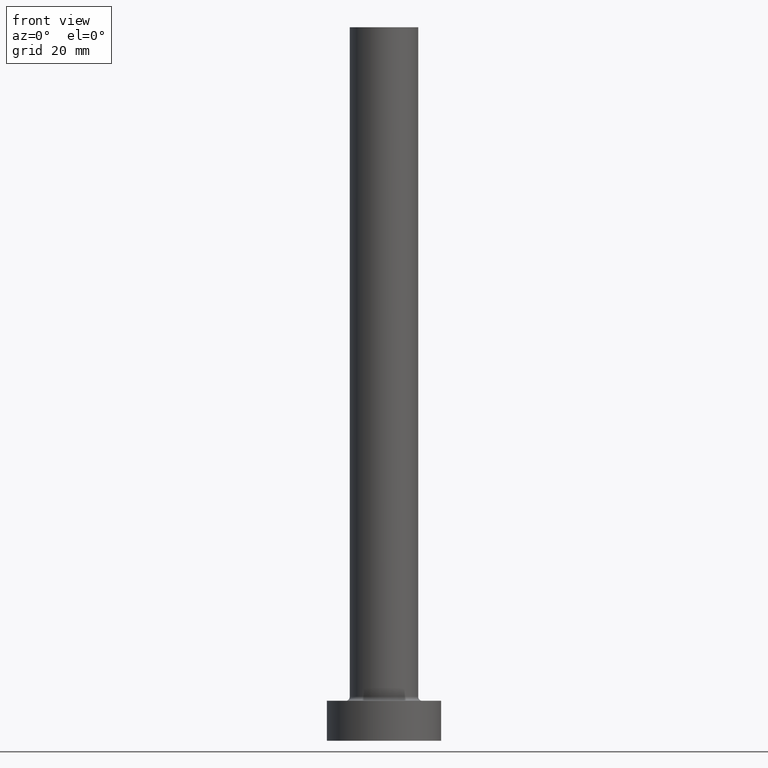
[diagram: clean part render]
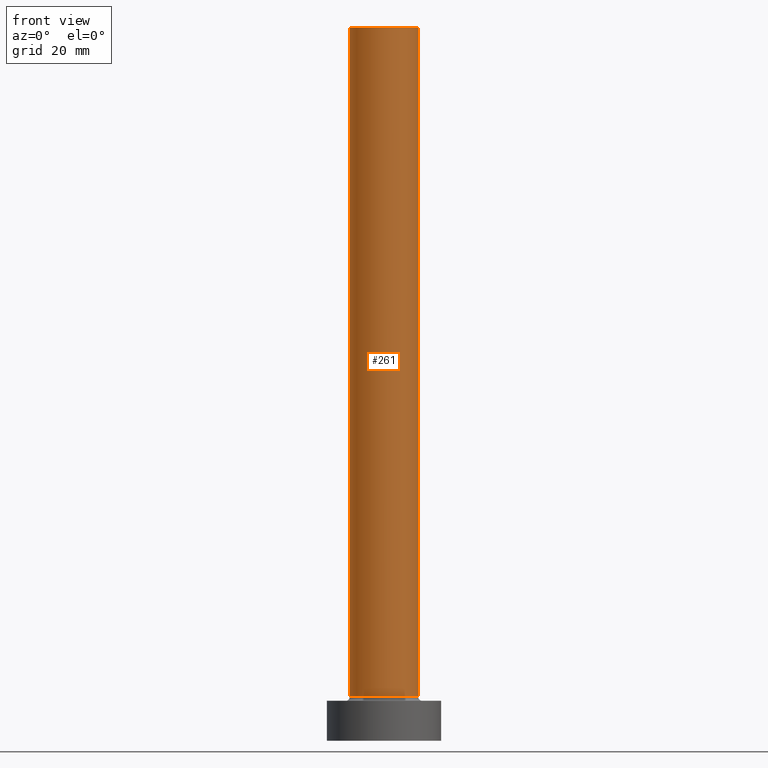
[diagram: same view with one face highlighted and labeled with its STEP entity id]
A machine part, front view. The second image highlights one B-rep face of the part: STEP entity #261.
In plain terms, the highlighted cylindrical surface (edge-blend (fillet) strip) has radius 6 mm, axis along (-0, -0, -1).
Its self-contained STEP definition (entity closure, byte-faithful):
#15 = VERTEX_POINT ( 'NONE', #198 ) ;
#23 = CYLINDRICAL_SURFACE ( 'NONE', #64, 6.000000000000000888 ) ;
#28 = FACE_OUTER_BOUND ( 'NONE', #122, .T. ) ;
#29 = EDGE_CURVE ( 'NONE', #268, #193, #342, .T. ) ;
#64 = AXIS2_PLACEMENT_3D ( 'NONE', #102, #452, #202 ) ;
#77 = EDGE_CURVE ( 'NONE', #15, #159, #111, .T. ) ;
#95 = CARTESIAN_POINT ( 'NONE',  ( 0.000000000000000000, 0.000000000000000000, 7.699999999999998401 ) ) ;
#97 = CARTESIAN_POINT ( 'NONE',  ( 6.000000000000000888, 7.347880794884120722E-16, 125.0000000000000000 ) ) ;
#101 = ORIENTED_EDGE ( 'NONE', *, *, #77, .T. ) ;
#102 = CARTESIAN_POINT ( 'NONE',  ( 0.000000000000000000, 0.000000000000000000, 125.0000000000000000 ) ) ;
#111 = LINE ( 'NONE', #419, #299 ) ;
#122 = EDGE_LOOP ( 'NONE', ( #328, #169, #101, #365 ) ) ;
#141 = DIRECTION ( 'NONE',  ( -0.000000000000000000, -0.000000000000000000, -1.000000000000000000 ) ) ;
#146 = DIRECTION ( 'NONE',  ( 0.000000000000000000, 0.000000000000000000, 1.000000000000000000 ) ) ;
#159 = VERTEX_POINT ( 'NONE', #213 ) ;
#162 = CIRCLE ( 'NONE', #192, 6.000000000000000888 ) ;
#169 = ORIENTED_EDGE ( 'NONE', *, *, #434, .F. ) ;
#170 = DIRECTION ( 'NONE',  ( 1.000000000000000000, 0.000000000000000000, 0.000000000000000000 ) ) ;
#176 = VECTOR ( 'NONE', #141, 1000.000000000000000 ) ;
#184 = CARTESIAN_POINT ( 'NONE',  ( 0.000000000000000000, 0.000000000000000000, 125.0000000000000000 ) ) ;
#192 = AXIS2_PLACEMENT_3D ( 'NONE', #95, #337, #170 ) ;
#193 = VERTEX_POINT ( 'NONE', #315 ) ;
#198 = CARTESIAN_POINT ( 'NONE',  ( -6.000000000000000888, 0.000000000000000000, 125.0000000000000000 ) ) ;
#202 = DIRECTION ( 'NONE',  ( -1.000000000000000000, 0.000000000000000000, 0.000000000000000000 ) ) ;
#213 = CARTESIAN_POINT ( 'NONE',  ( -6.000000000000000888, 0.000000000000000000, 7.699999999999998401 ) ) ;
#221 = DIRECTION ( 'NONE',  ( -0.000000000000000000, -0.000000000000000000, -1.000000000000000000 ) ) ;
#228 = EDGE_CURVE ( 'NONE', #159, #193, #162, .T. ) ;
#229 = CIRCLE ( 'NONE', #324, 6.000000000000000888 ) ;
#261 = ADVANCED_FACE ( 'NONE', ( #28 ), #23, .T. ) ;
#268 = VERTEX_POINT ( 'NONE', #97 ) ;
#299 = VECTOR ( 'NONE', #221, 1000.000000000000000 ) ;
#315 = CARTESIAN_POINT ( 'NONE',  ( 6.000000000000000888, 7.347880794884120722E-16, 7.699999999999998401 ) ) ;
#316 = DIRECTION ( 'NONE',  ( 1.000000000000000000, 0.000000000000000000, 0.000000000000000000 ) ) ;
#324 = AXIS2_PLACEMENT_3D ( 'NONE', #184, #146, #316 ) ;
#328 = ORIENTED_EDGE ( 'NONE', *, *, #29, .F. ) ;
#337 = DIRECTION ( 'NONE',  ( 0.000000000000000000, 0.000000000000000000, 1.000000000000000000 ) ) ;
#342 = LINE ( 'NONE', #451, #176 ) ;
#365 = ORIENTED_EDGE ( 'NONE', *, *, #228, .T. ) ;
#419 = CARTESIAN_POINT ( 'NONE',  ( -6.000000000000000888, 0.000000000000000000, 125.0000000000000000 ) ) ;
#434 = EDGE_CURVE ( 'NONE', #15, #268, #229, .T. ) ;
#451 = CARTESIAN_POINT ( 'NONE',  ( 6.000000000000000888, 7.347880794884120722E-16, 125.0000000000000000 ) ) ;
#452 = DIRECTION ( 'NONE',  ( -0.000000000000000000, -0.000000000000000000, -1.000000000000000000 ) ) ;